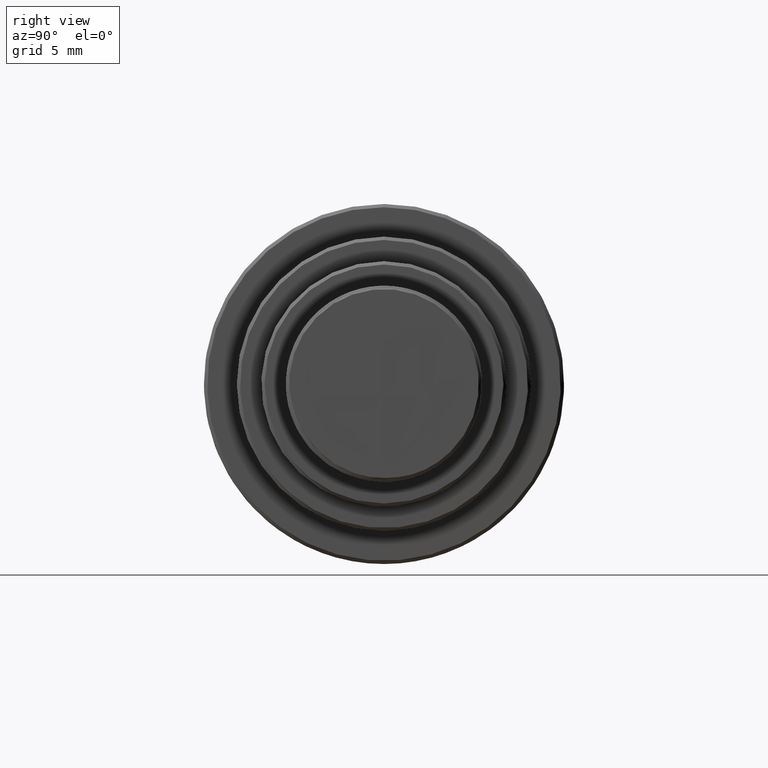
[diagram: clean part render]
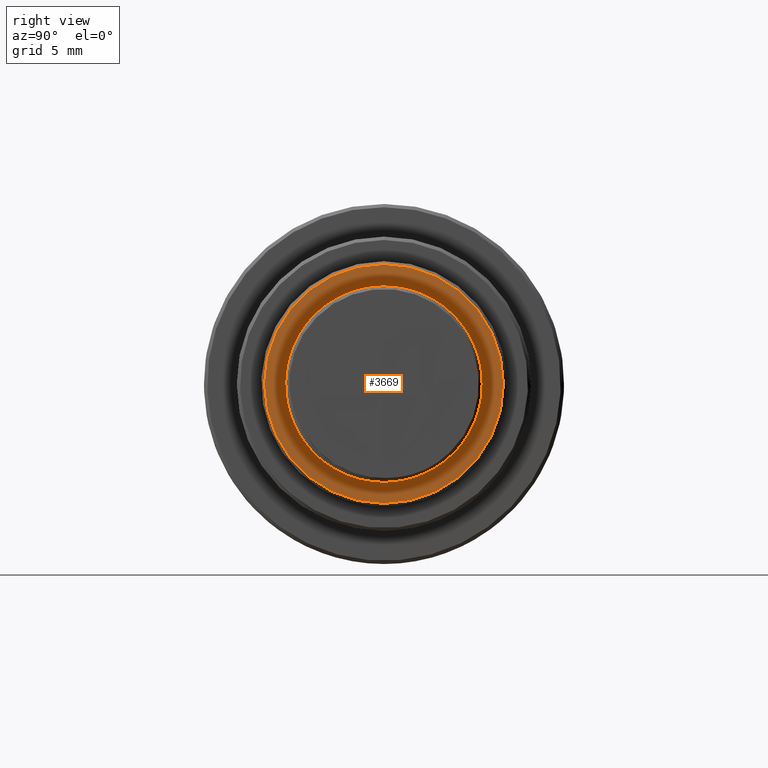
[diagram: same view with one face highlighted and labeled with its STEP entity id]
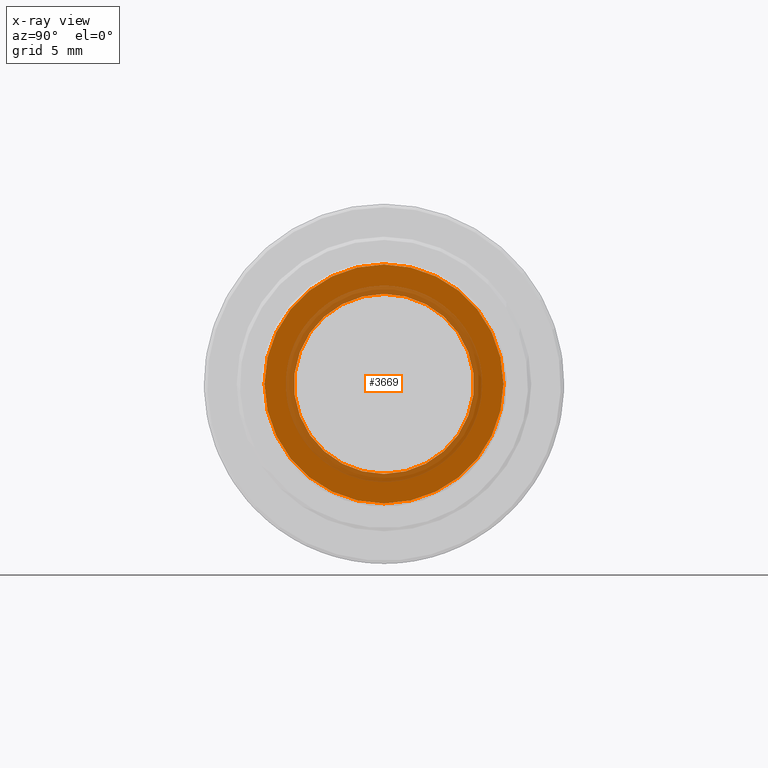
[diagram: x-ray of the same camera — body ghosted, the highlighted face saturated]
A machine part, right view. The second image highlights one B-rep face of the part: STEP entity #3669.
The next image is the same camera in x-ray: the body ghosted, the highlighted face saturated — about 26% of this face is hidden behind the body in this view.
In plain terms, the highlighted planar face has unit normal (-1, 0, 0).
Its self-contained STEP definition (entity closure, byte-faithful):
#330 = ORIENTED_EDGE ( 'NONE', *, *, #5784, .F. ) ;
#354 = DIRECTION ( 'NONE',  ( 0.000000000000000000, 0.000000000000000000, 1.000000000000000000 ) ) ;
#610 = EDGE_LOOP ( 'NONE', ( #6879 ) ) ;
#660 = EDGE_LOOP ( 'NONE', ( #330 ) ) ;
#915 = AXIS2_PLACEMENT_3D ( 'NONE', #997, #6925, #5525 ) ;
#997 = CARTESIAN_POINT ( 'NONE',  ( -11.49999999999993250, 0.000000000000000000, 0.000000000000000000 ) ) ;
#1089 = CARTESIAN_POINT ( 'NONE',  ( -11.50000000000000000, 0.000000000000000000, 0.000000000000000000 ) ) ;
#1217 = CIRCLE ( 'NONE', #915, 7.299999999999067235 ) ;
#2575 = DIRECTION ( 'NONE',  ( 1.000000000000000000, -0.000000000000000000, -0.000000000000000000 ) ) ;
#2745 = AXIS2_PLACEMENT_3D ( 'NONE', #1089, #2575, #354 ) ;
#2857 = VERTEX_POINT ( 'NONE', #5799 ) ;
#3539 = DIRECTION ( 'NONE',  ( -1.000000000000000000, 0.000000000000000000, 0.000000000000000000 ) ) ;
#3581 = VERTEX_POINT ( 'NONE', #7352 ) ;
#3669 = ADVANCED_FACE ( 'NONE', ( #8701, #9376 ), #8653, .F. ) ;
#4753 = AXIS2_PLACEMENT_3D ( 'NONE', #7211, #3539, #4991 ) ;
#4991 = DIRECTION ( 'NONE',  ( 0.000000000000000000, 0.000000000000000000, 1.000000000000000000 ) ) ;
#5525 = DIRECTION ( 'NONE',  ( 0.000000000000000000, 0.000000000000000000, 1.000000000000000000 ) ) ;
#5784 = EDGE_CURVE ( 'NONE', #3581, #3581, #5837, .T. ) ;
#5799 = CARTESIAN_POINT ( 'NONE',  ( -11.49999999999993250, 0.000000000000000000, 7.299999999999067235 ) ) ;
#5837 = CIRCLE ( 'NONE', #2745, 5.499999999998999911 ) ;
#6879 = ORIENTED_EDGE ( 'NONE', *, *, #7273, .F. ) ;
#6925 = DIRECTION ( 'NONE',  ( -1.000000000000000000, -0.000000000000000000, 0.000000000000000000 ) ) ;
#7211 = CARTESIAN_POINT ( 'NONE',  ( -11.50000000000000000, 0.000000000000000000, 0.000000000000000000 ) ) ;
#7273 = EDGE_CURVE ( 'NONE', #2857, #2857, #1217, .T. ) ;
#7352 = CARTESIAN_POINT ( 'NONE',  ( -11.50000000000000000, 0.000000000000000000, 5.499999999998999911 ) ) ;
#8653 = PLANE ( 'NONE',  #4753 ) ;
#8701 = FACE_BOUND ( 'NONE', #660, .T. ) ;
#9376 = FACE_OUTER_BOUND ( 'NONE', #610, .T. ) ;